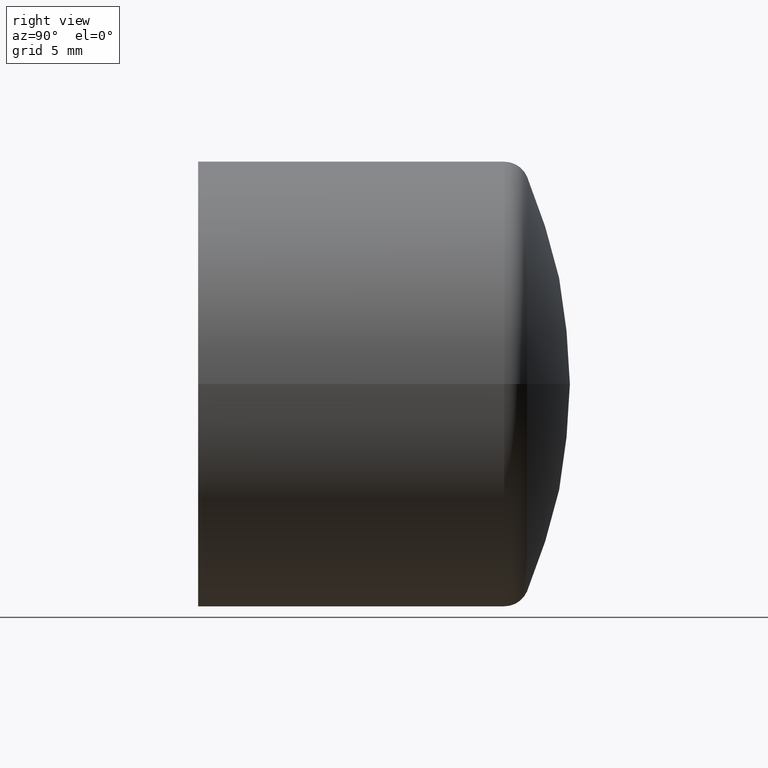
[diagram: clean part render]
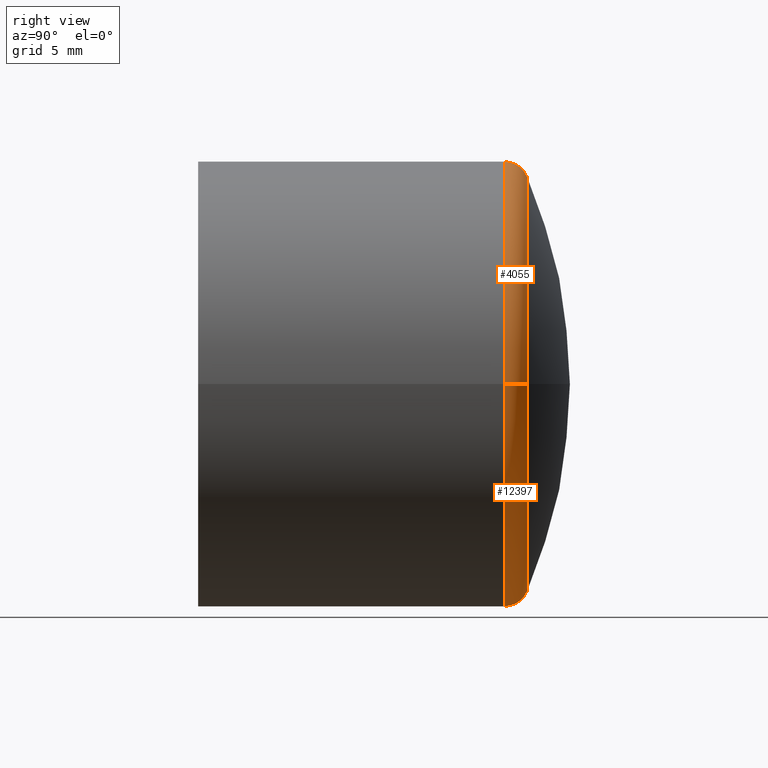
[diagram: same view with one multi-face feature highlighted, each face labeled with its STEP entity id]
A machine part, right view. The highlighted faces form ONE feature: a constant-radius fillet chain: 2 tangent blend faces with common blend radius 1 mm. The faces share edges in the B-rep.
Their STEP definitions:
[1] entity #12397 (Torus):
#50 = DIRECTION ( 'NONE',  ( 0.000000000000000000, 0.000000000000000000, -1.000000000000000000 ) ) ;
#646 = TOROIDAL_SURFACE ( 'NONE', #11092, 8.000000000000000000, 1.000000000000000000 ) ;
#1117 = AXIS2_PLACEMENT_3D ( 'NONE', #1339, #50, #2238 ) ;
#1339 = CARTESIAN_POINT ( 'NONE',  ( 8.000000000000000000, 12.35275517228563480, 0.000000000000000000 ) ) ;
#1368 = EDGE_CURVE ( 'NONE', #13342, #7449, #1863, .T. ) ;
#1649 = CIRCLE ( 'NONE', #11456, 1.000000000000000000 ) ;
#1863 = CIRCLE ( 'NONE', #1117, 1.000000000000000000 ) ;
#1879 = DIRECTION ( 'NONE',  ( 1.000000000000000000, 0.000000000000000000, 0.000000000000000000 ) ) ;
#2222 = EDGE_LOOP ( 'NONE', ( #3602, #4912, #5756, #5709 ) ) ;
#2238 = DIRECTION ( 'NONE',  ( -1.000000000000000000, 0.000000000000000000, 0.000000000000000000 ) ) ;
#3366 = CIRCLE ( 'NONE', #9651, 9.000000000000001776 ) ;
#3485 = CARTESIAN_POINT ( 'NONE',  ( 8.395061728395061706, 13.27140974869480061, 0.000000000000000000 ) ) ;
#3602 = ORIENTED_EDGE ( 'NONE', *, *, #13852, .F. ) ;
#4367 = CARTESIAN_POINT ( 'NONE',  ( -8.395061728395061706, 13.27140974869480061, 1.028098547432346053E-15 ) ) ;
#4890 = DIRECTION ( 'NONE',  ( 1.000000000000000000, 0.000000000000000000, -1.224646799147353454E-16 ) ) ;
#4912 = ORIENTED_EDGE ( 'NONE', *, *, #7894, .F. ) ;
#5098 = CARTESIAN_POINT ( 'NONE',  ( -4.120191788800201530E-17, 12.35275517228563480, 0.000000000000000000 ) ) ;
#5215 = DIRECTION ( 'NONE',  ( 1.556407531961289693E-17, 1.000000000000000000, 0.000000000000000000 ) ) ;
#5709 = ORIENTED_EDGE ( 'NONE', *, *, #12371, .F. ) ;
#5756 = ORIENTED_EDGE ( 'NONE', *, *, #1368, .T. ) ;
#6153 = AXIS2_PLACEMENT_3D ( 'NONE', #12764, #5215, #1879 ) ;
#7121 = CARTESIAN_POINT ( 'NONE',  ( -8.000000000000000000, 12.35275517228563480, 9.797174393178825657E-16 ) ) ;
#7325 = DIRECTION ( 'NONE',  ( 1.000000000000000000, 0.000000000000000000, 0.000000000000000000 ) ) ;
#7449 = VERTEX_POINT ( 'NONE', #8129 ) ;
#7894 = EDGE_CURVE ( 'NONE', #13342, #12621, #8781, .T. ) ;
#8129 = CARTESIAN_POINT ( 'NONE',  ( 9.000000000000001776, 12.35275517228563480, 0.000000000000000000 ) ) ;
#8469 = DIRECTION ( 'NONE',  ( -1.556407531961289693E-17, -1.000000000000000000, -0.000000000000000000 ) ) ;
#8781 = CIRCLE ( 'NONE', #6153, 8.395061728395059930 ) ;
#9335 = FACE_OUTER_BOUND ( 'NONE', #2222, .T. ) ;
#9581 = DIRECTION ( 'NONE',  ( -1.556407531961289693E-17, -1.000000000000000000, -0.000000000000000000 ) ) ;
#9651 = AXIS2_PLACEMENT_3D ( 'NONE', #5098, #9581, #7325 ) ;
#9940 = VERTEX_POINT ( 'NONE', #12547 ) ;
#10397 = CARTESIAN_POINT ( 'NONE',  ( -4.120191788800200914E-17, 12.35275517228563480, 0.000000000000000000 ) ) ;
#11092 = AXIS2_PLACEMENT_3D ( 'NONE', #10397, #8469, #12642 ) ;
#11456 = AXIS2_PLACEMENT_3D ( 'NONE', #7121, #13635, #4890 ) ;
#12371 = EDGE_CURVE ( 'NONE', #9940, #7449, #3366, .T. ) ;
#12397 = ADVANCED_FACE ( 'NONE', ( #9335 ), #646, .T. ) ;
#12547 = CARTESIAN_POINT ( 'NONE',  ( -9.000000000000001776, 12.35275517228563480, 1.102182119232617911E-15 ) ) ;
#12621 = VERTEX_POINT ( 'NONE', #4367 ) ;
#12642 = DIRECTION ( 'NONE',  ( 1.000000000000000000, -1.556407531961289693E-17, 0.000000000000000000 ) ) ;
#12764 = CARTESIAN_POINT ( 'NONE',  ( 3.038326916737114976E-16, 13.27140974869480061, 0.000000000000000000 ) ) ;
#13342 = VERTEX_POINT ( 'NONE', #3485 ) ;
#13635 = DIRECTION ( 'NONE',  ( 1.224646799147353207E-16, -1.906049502185225166E-33, 1.000000000000000000 ) ) ;
#13852 = EDGE_CURVE ( 'NONE', #12621, #9940, #1649, .T. ) ;
[2] entity #4055 (Torus):
#50 = DIRECTION ( 'NONE',  ( 0.000000000000000000, 0.000000000000000000, -1.000000000000000000 ) ) ;
#185 = EDGE_CURVE ( 'NONE', #7449, #9940, #5800, .T. ) ;
#582 = CIRCLE ( 'NONE', #11621, 8.395061728395059930 ) ;
#1117 = AXIS2_PLACEMENT_3D ( 'NONE', #1339, #50, #2238 ) ;
#1339 = CARTESIAN_POINT ( 'NONE',  ( 8.000000000000000000, 12.35275517228563480, 0.000000000000000000 ) ) ;
#1368 = EDGE_CURVE ( 'NONE', #13342, #7449, #1863, .T. ) ;
#1649 = CIRCLE ( 'NONE', #11456, 1.000000000000000000 ) ;
#1863 = CIRCLE ( 'NONE', #1117, 1.000000000000000000 ) ;
#2053 = DIRECTION ( 'NONE',  ( -1.556407531961289693E-17, -1.000000000000000000, -0.000000000000000000 ) ) ;
#2238 = DIRECTION ( 'NONE',  ( -1.000000000000000000, 0.000000000000000000, 0.000000000000000000 ) ) ;
#3123 = DIRECTION ( 'NONE',  ( -1.556407531961289693E-17, -1.000000000000000000, -0.000000000000000000 ) ) ;
#3485 = CARTESIAN_POINT ( 'NONE',  ( 8.395061728395061706, 13.27140974869480061, 0.000000000000000000 ) ) ;
#4055 = ADVANCED_FACE ( 'NONE', ( #13734 ), #6777, .T. ) ;
#4189 = CARTESIAN_POINT ( 'NONE',  ( -4.120191788800201530E-17, 12.35275517228563480, 0.000000000000000000 ) ) ;
#4271 = DIRECTION ( 'NONE',  ( 1.000000000000000000, -1.556407531961289693E-17, 0.000000000000000000 ) ) ;
#4367 = CARTESIAN_POINT ( 'NONE',  ( -8.395061728395061706, 13.27140974869480061, 1.028098547432346053E-15 ) ) ;
#4890 = DIRECTION ( 'NONE',  ( 1.000000000000000000, 0.000000000000000000, -1.224646799147353454E-16 ) ) ;
#5053 = CARTESIAN_POINT ( 'NONE',  ( 3.038326916737114976E-16, 13.27140974869480061, 0.000000000000000000 ) ) ;
#5196 = EDGE_LOOP ( 'NONE', ( #12370, #5210, #6949, #11421 ) ) ;
#5210 = ORIENTED_EDGE ( 'NONE', *, *, #13852, .T. ) ;
#5800 = CIRCLE ( 'NONE', #9418, 9.000000000000001776 ) ;
#6777 = TOROIDAL_SURFACE ( 'NONE', #9805, 8.000000000000000000, 1.000000000000000000 ) ;
#6949 = ORIENTED_EDGE ( 'NONE', *, *, #185, .F. ) ;
#7121 = CARTESIAN_POINT ( 'NONE',  ( -8.000000000000000000, 12.35275517228563480, 9.797174393178825657E-16 ) ) ;
#7141 = DIRECTION ( 'NONE',  ( 1.000000000000000000, 0.000000000000000000, 0.000000000000000000 ) ) ;
#7449 = VERTEX_POINT ( 'NONE', #8129 ) ;
#8129 = CARTESIAN_POINT ( 'NONE',  ( 9.000000000000001776, 12.35275517228563480, 0.000000000000000000 ) ) ;
#8232 = DIRECTION ( 'NONE',  ( 1.556407531961289693E-17, 1.000000000000000000, 0.000000000000000000 ) ) ;
#9418 = AXIS2_PLACEMENT_3D ( 'NONE', #4189, #2053, #13936 ) ;
#9805 = AXIS2_PLACEMENT_3D ( 'NONE', #10845, #3123, #4271 ) ;
#9940 = VERTEX_POINT ( 'NONE', #12547 ) ;
#10381 = EDGE_CURVE ( 'NONE', #12621, #13342, #582, .T. ) ;
#10845 = CARTESIAN_POINT ( 'NONE',  ( -4.120191788800200914E-17, 12.35275517228563480, 0.000000000000000000 ) ) ;
#11421 = ORIENTED_EDGE ( 'NONE', *, *, #1368, .F. ) ;
#11456 = AXIS2_PLACEMENT_3D ( 'NONE', #7121, #13635, #4890 ) ;
#11621 = AXIS2_PLACEMENT_3D ( 'NONE', #5053, #8232, #7141 ) ;
#12370 = ORIENTED_EDGE ( 'NONE', *, *, #10381, .F. ) ;
#12547 = CARTESIAN_POINT ( 'NONE',  ( -9.000000000000001776, 12.35275517228563480, 1.102182119232617911E-15 ) ) ;
#12621 = VERTEX_POINT ( 'NONE', #4367 ) ;
#13342 = VERTEX_POINT ( 'NONE', #3485 ) ;
#13635 = DIRECTION ( 'NONE',  ( 1.224646799147353207E-16, -1.906049502185225166E-33, 1.000000000000000000 ) ) ;
#13734 = FACE_OUTER_BOUND ( 'NONE', #5196, .T. ) ;
#13852 = EDGE_CURVE ( 'NONE', #12621, #9940, #1649, .T. ) ;
#13936 = DIRECTION ( 'NONE',  ( 1.000000000000000000, 0.000000000000000000, 0.000000000000000000 ) ) ;